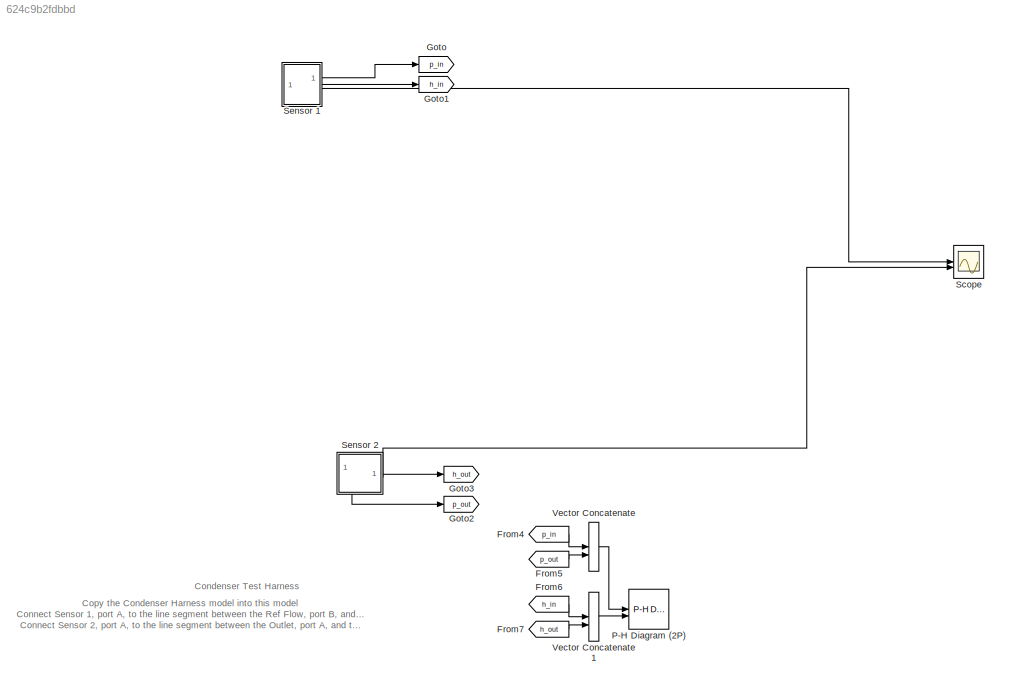
MODEL slx_624c9b2fdbbd
KIND model
CONFIG AbsTol = 1e-3
CONFIG EnableMultiTasking = off
CONFIG FixedStep = auto
CONFIG MaxStep = auto
CONFIG MinStep = auto
CONFIG RelTol = 1e-3
CONFIG SampleTimeConstraint = Unconstrained
CONFIG SolverName = VariableStepAuto
CONFIG StartTime = 0.0
CONFIG StopTime = 10
BLOCK [From] From4
  GotoTag = p_in
BLOCK [From] From5
  GotoTag = p_out
BLOCK [From] From6
  GotoTag = h_in
BLOCK [From] From7
  GotoTag = h_out
BLOCK [Goto] Goto
  GotoTag = p_in
BLOCK [Goto] Goto1
  GotoTag = h_in
BLOCK [Goto] Goto2
  GotoTag = p_out
BLOCK [Goto] Goto3
  GotoTag = h_out
BLOCK [Reference] P-H Diagram (2P)  REF=SimscapeFluids_lib/Two-Phase Fluid/Utilities/P-H Diagram (2P)
  SourceBlock = SimscapeFluids_lib/Two-Phase Fluid/Utilities/P-H Diagram (2P)
  SourceType = P-H Diagram (2P)
  UserDataPersistent = on
BLOCK [Scope] Scope
  Floating = off
  NumInputPorts = 2
  ScopeSpecificationString = Simulink.scopes.TimeScopeBlockCfg('CurrentConfiguration', extmgr.ConfigurationSet(extmgr.Configuration('Core','General UI',true),extmgr.Configuration('Core','Source UI',true),extmgr.Configuration('Sources','WiredSimulink',true),extmgr.Configuration('Visuals','Time Domain',true,'SerializedDisplays',{struct('MinYLimReal','263.44226','MaxYLimReal','268.81151','YLabelReal','','MinYLimMag','263.44226',...<+1355ch>
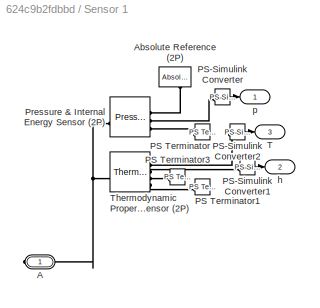
BLOCK [SubSystem] Sensor 1
  NameLocation = top
  PortSchema = {"entries":[{"content":{"sides":[{"content":{"connectorIds":[]},"type":"ConnectorPlacement.EquallySpacedRectSide","uuid":"a2386ea4-012f-4d06-9e16-de8034e56d49"},{"content":{"connectorIds":["Out1","Out2","Out3"],"side":"RIGHT"},"type":"ConnectorPlacement.EquallySpacedRectSide","uuid":"4fc9eed4-9b91-4b18-836c-5d3d8d2a2391"},{"content":{"connectorIds":[],"side":"TOP"},"type":"ConnectorPlacement.Equal...<+401ch>
BLOCK [PMIOPort] Sensor 1/A
  Side = Right
BLOCK [Reference] Sensor 1/Absolute Reference (2P)  REF=fl_lib/Two-Phase Fluid/Elements/Absolute Reference
(2P)
  NameLocation = left
  SourceBlock = fl_lib/Two-Phase Fluid/Elements/Absolute Reference\n(2P)
  SourceType = Absolute Reference\n(2P)
BLOCK [Reference] Sensor 1/PS Terminator  REF=fl_lib/Physical Signals/Sinks/PS Terminator
  SourceBlock = fl_lib/Physical Signals/Sinks/PS Terminator
  SourceType = PS Terminator
BLOCK [Reference] Sensor 1/PS Terminator1  REF=fl_lib/Physical Signals/Sinks/PS Terminator
  SourceBlock = fl_lib/Physical Signals/Sinks/PS Terminator
  SourceType = PS Terminator
BLOCK [Reference] Sensor 1/PS Terminator3  REF=fl_lib/Physical Signals/Sinks/PS Terminator
  SourceBlock = fl_lib/Physical Signals/Sinks/PS Terminator
  SourceType = PS Terminator
BLOCK [Reference] Sensor 1/PS-Simulink Converter  REF=nesl_utility/PS-Simulink
Converter
  SourceBlock = nesl_utility/PS-Simulink\nConverter
  SourceType = PS-Simulink\nConverter
BLOCK [Reference] Sensor 1/PS-Simulink Converter1  REF=nesl_utility/PS-Simulink
Converter
  SourceBlock = nesl_utility/PS-Simulink\nConverter
  SourceType = PS-Simulink\nConverter
BLOCK [Reference] Sensor 1/PS-Simulink Converter2  REF=nesl_utility/PS-Simulink
Converter
  SourceBlock = nesl_utility/PS-Simulink\nConverter
  SourceType = PS-Simulink\nConverter
BLOCK [Reference] Sensor 1/Pressure & Internal Energy Sensor (2P)  REF=fl_lib/Two-Phase Fluid/Sensors/Pressure & Internal
Energy Sensor (2P)
  SourceBlock = fl_lib/Two-Phase Fluid/Sensors/Pressure & Internal\nEnergy Sensor (2P)
  SourceType = Pressure & Internal\nEnergy Sensor (2P)
BLOCK [Outport] Sensor 1/T
  Port = 3
BLOCK [Reference] Sensor 1/Thermodynamic Properties Sensor (2P)  REF=fl_lib/Two-Phase Fluid/Sensors/Thermodynamic
Properties Sensor
(2P)
  SourceBlock = fl_lib/Two-Phase Fluid/Sensors/Thermodynamic\nProperties Sensor\n(2P)
  SourceType = Thermodynamic\nProperties Sensor\n(2P)
BLOCK [Outport] Sensor 1/h
  Port = 2
BLOCK [Outport] Sensor 1/p
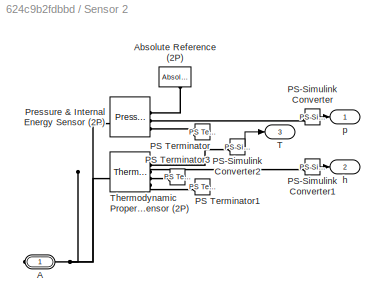
BLOCK [SubSystem] Sensor 2
  PortSchema = {"entries":[{"content":{"sides":[{"content":{"connectorIds":[]},"type":"ConnectorPlacement.EquallySpacedRectSide","uuid":"09a2fde7-9514-415f-ad1a-2358fbc90122"},{"content":{"connectorIds":["Out1","Out2","Out3"],"side":"RIGHT"},"type":"ConnectorPlacement.EquallySpacedRectSide","uuid":"1a58e595-65c2-481f-a4c6-044a1080df7a"},{"content":{"connectorIds":[],"side":"TOP"},"type":"ConnectorPlacement.Equal...<+401ch>
BLOCK [PMIOPort] Sensor 2/A
  Side = Right
BLOCK [Reference] Sensor 2/Absolute Reference (2P)  REF=fl_lib/Two-Phase Fluid/Elements/Absolute Reference
(2P)
  NameLocation = left
  SourceBlock = fl_lib/Two-Phase Fluid/Elements/Absolute Reference\n(2P)
  SourceType = Absolute Reference\n(2P)
BLOCK [Reference] Sensor 2/PS Terminator  REF=fl_lib/Physical Signals/Sinks/PS Terminator
  SourceBlock = fl_lib/Physical Signals/Sinks/PS Terminator
  SourceType = PS Terminator
BLOCK [Reference] Sensor 2/PS Terminator1  REF=fl_lib/Physical Signals/Sinks/PS Terminator
  SourceBlock = fl_lib/Physical Signals/Sinks/PS Terminator
  SourceType = PS Terminator
BLOCK [Reference] Sensor 2/PS Terminator3  REF=fl_lib/Physical Signals/Sinks/PS Terminator
  SourceBlock = fl_lib/Physical Signals/Sinks/PS Terminator
  SourceType = PS Terminator
BLOCK [Reference] Sensor 2/PS-Simulink Converter  REF=nesl_utility/PS-Simulink
Converter
  SourceBlock = nesl_utility/PS-Simulink\nConverter
  SourceType = PS-Simulink\nConverter
BLOCK [Reference] Sensor 2/PS-Simulink Converter1  REF=nesl_utility/PS-Simulink
Converter
  SourceBlock = nesl_utility/PS-Simulink\nConverter
  SourceType = PS-Simulink\nConverter
BLOCK [Reference] Sensor 2/PS-Simulink Converter2  REF=nesl_utility/PS-Simulink
Converter
  SourceBlock = nesl_utility/PS-Simulink\nConverter
  SourceType = PS-Simulink\nConverter
BLOCK [Reference] Sensor 2/Pressure & Internal Energy Sensor (2P)  REF=fl_lib/Two-Phase Fluid/Sensors/Pressure & Internal
Energy Sensor (2P)
  SourceBlock = fl_lib/Two-Phase Fluid/Sensors/Pressure & Internal\nEnergy Sensor (2P)
  SourceType = Pressure & Internal\nEnergy Sensor (2P)
BLOCK [Outport] Sensor 2/T
  Port = 3
BLOCK [Reference] Sensor 2/Thermodynamic Properties Sensor (2P)  REF=fl_lib/Two-Phase Fluid/Sensors/Thermodynamic
Properties Sensor
(2P)
  SourceBlock = fl_lib/Two-Phase Fluid/Sensors/Thermodynamic\nProperties Sensor\n(2P)
  SourceType = Thermodynamic\nProperties Sensor\n(2P)
BLOCK [Outport] Sensor 2/h
  Port = 2
BLOCK [Outport] Sensor 2/p
BLOCK [Concatenate] Vector Concatenate
BLOCK [Concatenate] Vector Concatenate1
ANNOTATION (root): Copy the Condenser Harness model into this model Connect Sensor 1, port A, to the line segment between the Ref Flow, port B, and the input to the condenser Connect Sensor 2, port A, to the line segment between the Outlet, port A, and the condenser
ANNOTATION (root): Condenser Test Harness
LINE From4:1 -> Vector Concatenate:1
LINE From5:1 -> Vector Concatenate:2
LINE From6:1 -> Vector Concatenate1:1
LINE From7:1 -> Vector Concatenate1:2
LINE Sensor 1/PS-Simulink Converter1:1 -> Sensor 1/h:1
LINE Sensor 1/PS-Simulink Converter2:1 -> Sensor 1/T:1
LINE Sensor 1/PS-Simulink Converter:1 -> Sensor 1/p:1
LINE Sensor 1:1 -> Goto:1
LINE Sensor 1:2 -> Goto1:1
LINE Sensor 1:3 -> Scope:1
LINE Sensor 2/PS-Simulink Converter1:1 -> Sensor 2/h:1
LINE Sensor 2/PS-Simulink Converter2:1 -> Sensor 2/T:1
LINE Sensor 2/PS-Simulink Converter:1 -> Sensor 2/p:1
LINE Sensor 2:1 -> Goto2:1
LINE Sensor 2:2 -> Goto3:1
LINE Sensor 2:3 -> Scope:2
LINE Vector Concatenate1:1 -> P-H Diagram (2P):2
LINE Vector Concatenate:1 -> P-H Diagram (2P):1
PNET net1: Sensor 1/A:RConn1 -- Sensor 1/Pressure & Internal Energy Sensor (2P):LConn1 -- Sensor 1/Thermodynamic Properties Sensor (2P):LConn1
PLINE Sensor 1/Absolute Reference (2P):LConn1 -- Sensor 1/Pressure & Internal Energy Sensor (2P):RConn1
PLINE Sensor 1/PS Terminator1:LConn1 -- Sensor 1/Thermodynamic Properties Sensor (2P):RConn4
PLINE Sensor 1/PS Terminator3:LConn1 -- Sensor 1/Thermodynamic Properties Sensor (2P):RConn3
PLINE Sensor 1/PS Terminator:LConn1 -- Sensor 1/Pressure & Internal Energy Sensor (2P):RConn3
PLINE Sensor 1/PS-Simulink Converter1:LConn1 -- Sensor 1/Thermodynamic Properties Sensor (2P):RConn2
PLINE Sensor 1/PS-Simulink Converter2:LConn1 -- Sensor 1/Thermodynamic Properties Sensor (2P):RConn1
PLINE Sensor 1/PS-Simulink Converter:LConn1 -- Sensor 1/Pressure & Internal Energy Sensor (2P):RConn2
PNET net2: Sensor 2/A:RConn1 -- Sensor 2/Pressure & Internal Energy Sensor (2P):LConn1 -- Sensor 2/Thermodynamic Properties Sensor (2P):LConn1
PLINE Sensor 2/Absolute Reference (2P):LConn1 -- Sensor 2/Pressure & Internal Energy Sensor (2P):RConn1
PLINE Sensor 2/PS Terminator1:LConn1 -- Sensor 2/Thermodynamic Properties Sensor (2P):RConn4
PLINE Sensor 2/PS Terminator3:LConn1 -- Sensor 2/Thermodynamic Properties Sensor (2P):RConn3
PLINE Sensor 2/PS Terminator:LConn1 -- Sensor 2/Pressure & Internal Energy Sensor (2P):RConn3
PLINE Sensor 2/PS-Simulink Converter1:LConn1 -- Sensor 2/Thermodynamic Properties Sensor (2P):RConn2
PLINE Sensor 2/PS-Simulink Converter2:LConn1 -- Sensor 2/Thermodynamic Properties Sensor (2P):RConn1
PLINE Sensor 2/PS-Simulink Converter:LConn1 -- Sensor 2/Pressure & Internal Energy Sensor (2P):RConn2
note: PNET lines group multi-terminal physical nets as a canonical sorted terminal list (undirected conserving connections); 2-terminal nets keep the pairwise PLINE form
